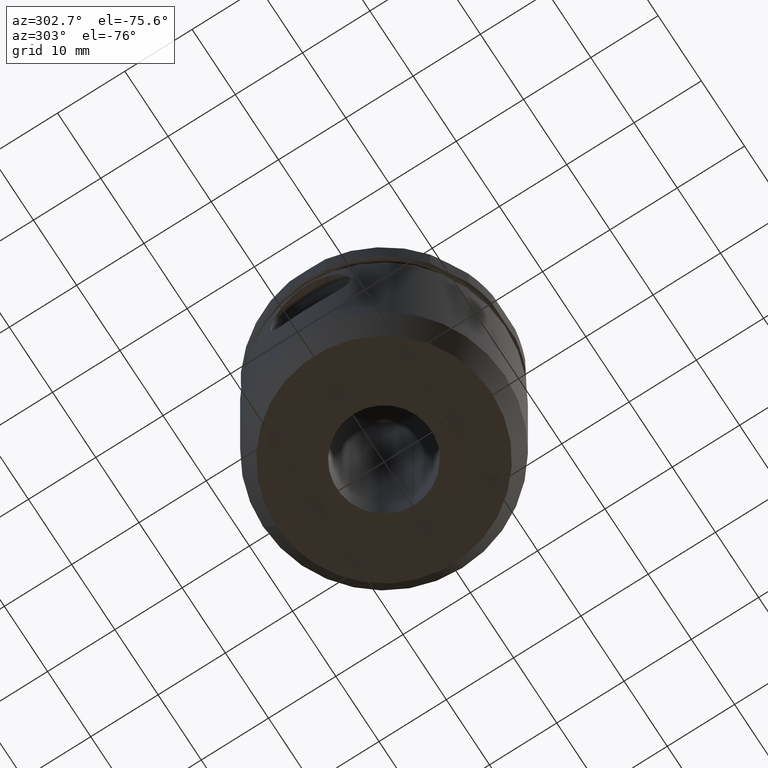
[diagram: clean part render]
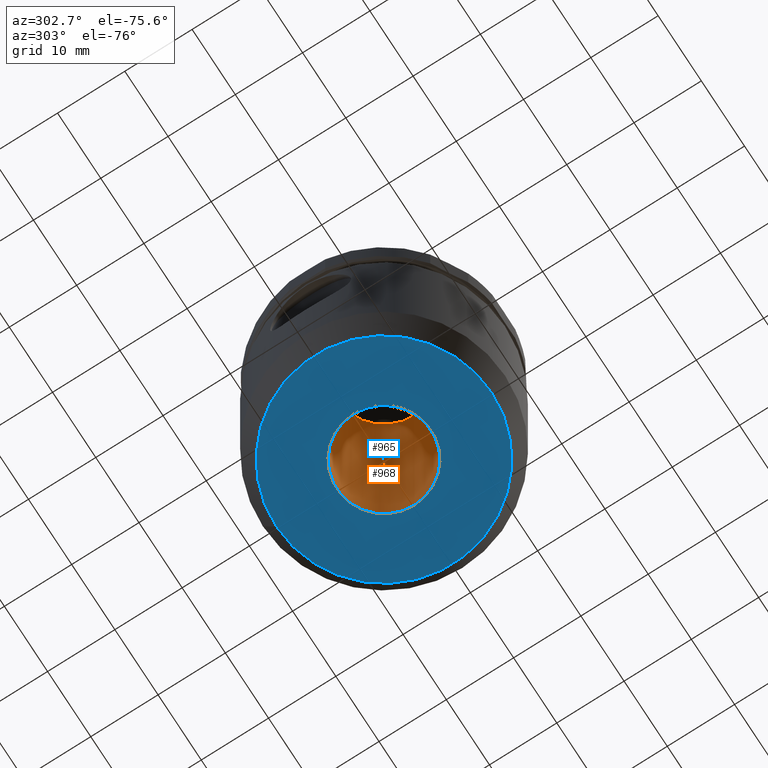
[diagram: same view with the hole feature highlighted: cylindrical wall and planar end face, labeled with their STEP entity ids]
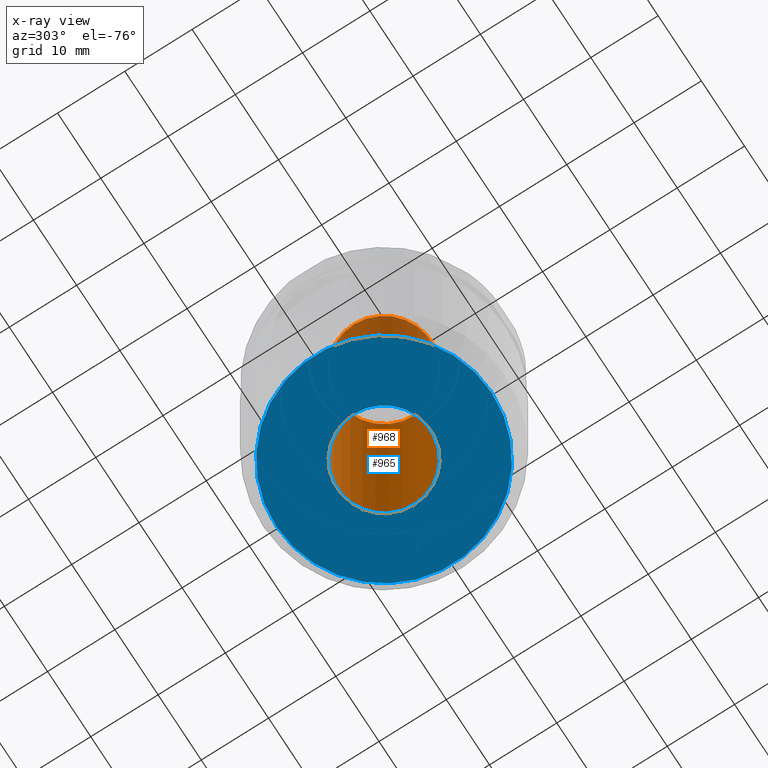
[diagram: x-ray of the same camera — body ghosted, the hole faces saturated]
A machine part, auxiliary view. The highlighted faces form one hole feature of diameter 14 mm: the cylindrical wall (entity #968, orange) and its adjacent planar end face (entity #965, blue) — they share a circular edge in the B-rep.
The next image is the same camera in x-ray (body ghosted, the hole faces saturated) — the bore reads through the body.
Wall:
#166=CIRCLE('',#1097,7.);
#168=CIRCLE('',#1102,7.);
#414=ORIENTED_EDGE('',*,*,#544,.F.);
#415=ORIENTED_EDGE('',*,*,#546,.T.);
#544=EDGE_CURVE('',#636,#636,#166,.T.);
#546=EDGE_CURVE('',#638,#638,#168,.T.);
#636=VERTEX_POINT('',#1823);
#638=VERTEX_POINT('',#1830);
#772=EDGE_LOOP('',(#414));
#773=EDGE_LOOP('',(#415));
#870=FACE_BOUND('',#772,.T.);
#871=FACE_BOUND('',#773,.T.);
#904=CYLINDRICAL_SURFACE('',#1101,7.);
#968=ADVANCED_FACE('',(#870,#871),#904,.F.);
#1097=AXIS2_PLACEMENT_3D('',#1822,#1360,#1361);
#1101=AXIS2_PLACEMENT_3D('',#1828,#1368,#1369);
#1102=AXIS2_PLACEMENT_3D('',#1829,#1370,#1371);
#1360=DIRECTION('',(0.,0.,1.));
#1361=DIRECTION('',(1.,0.,0.));
#1368=DIRECTION('',(0.,0.,1.));
#1369=DIRECTION('',(1.,0.,0.));
#1370=DIRECTION('',(0.,0.,1.));
#1371=DIRECTION('',(1.,0.,0.));
#1822=CARTESIAN_POINT('',(0.,0.,-47.9948185144591));
#1823=CARTESIAN_POINT('',(7.,0.,-47.9948185144591));
#1828=CARTESIAN_POINT('',(0.,0.,-2.99481851445908));
#1829=CARTESIAN_POINT('',(0.,0.,-2.99481851445908));
#1830=CARTESIAN_POINT('',(7.,0.,-2.99481851445908));
End face:
#111=PLANE('',#1096);
#166=CIRCLE('',#1097,7.);
#167=CIRCLE('',#1098,16.);
#408=ORIENTED_EDGE('',*,*,#544,.T.);
#409=ORIENTED_EDGE('',*,*,#545,.T.);
#544=EDGE_CURVE('',#636,#636,#166,.T.);
#545=EDGE_CURVE('',#637,#637,#167,.T.);
#636=VERTEX_POINT('',#1823);
#637=VERTEX_POINT('',#1825);
#766=EDGE_LOOP('',(#408));
#767=EDGE_LOOP('',(#409));
#864=FACE_BOUND('',#766,.T.);
#865=FACE_BOUND('',#767,.T.);
#965=ADVANCED_FACE('',(#864,#865),#111,.T.);
#1096=AXIS2_PLACEMENT_3D('',#1821,#1358,#1359);
#1097=AXIS2_PLACEMENT_3D('',#1822,#1360,#1361);
#1098=AXIS2_PLACEMENT_3D('',#1824,#1362,#1363);
#1358=DIRECTION('',(1.22464605849178E-16,1.51929083932157E-64,-1.));
#1359=DIRECTION('',(6.16297582203915E-33,1.,7.54746404904039E-49));
#1360=DIRECTION('',(0.,0.,1.));
#1361=DIRECTION('',(1.,0.,0.));
#1362=DIRECTION('',(1.22464605849178E-16,1.51929083932157E-64,-1.));
#1363=DIRECTION('',(6.16297582203915E-33,1.,7.54746404904039E-49));
#1821=CARTESIAN_POINT('',(5.87766653217606E-15,16.,-47.9948185144591));
#1822=CARTESIAN_POINT('',(0.,0.,-47.9948185144591));
#1823=CARTESIAN_POINT('',(7.,0.,-47.9948185144591));
#1824=CARTESIAN_POINT('',(5.87766653217606E-15,7.29180881039189E-63,-47.9948185144591));
#1825=CARTESIAN_POINT('',(5.87766653217606E-15,16.,-47.9948185144591));